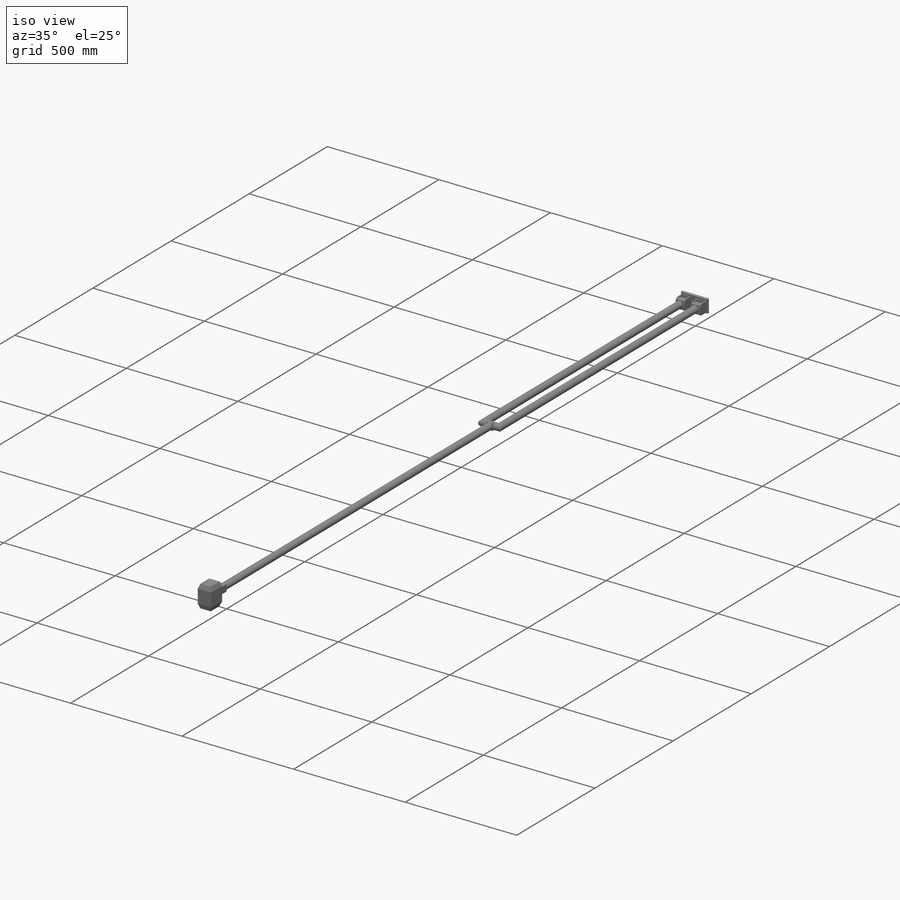
[diagram: iso view]
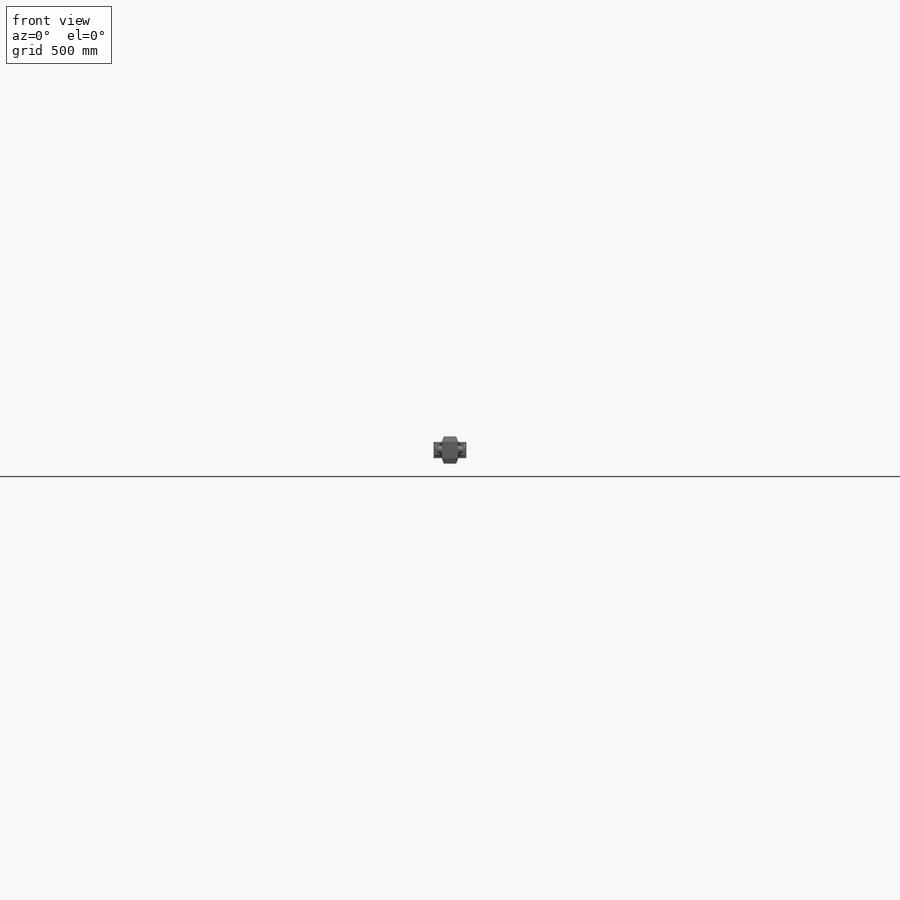
[diagram: front view]
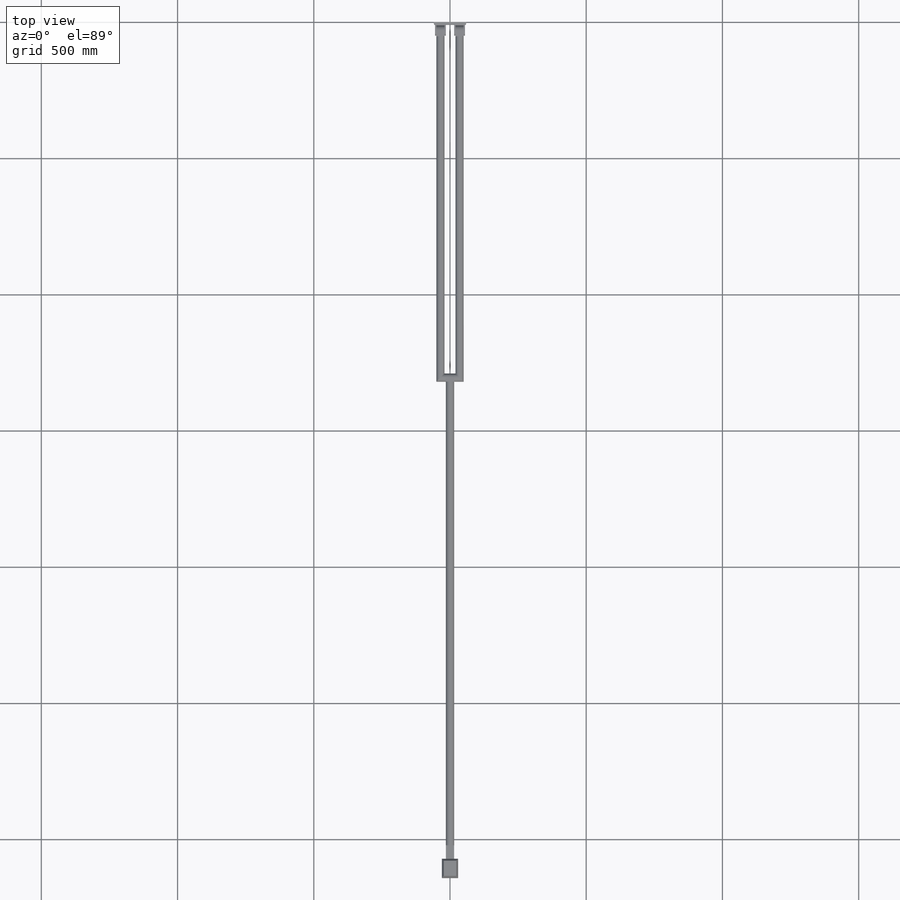
[diagram: top view]
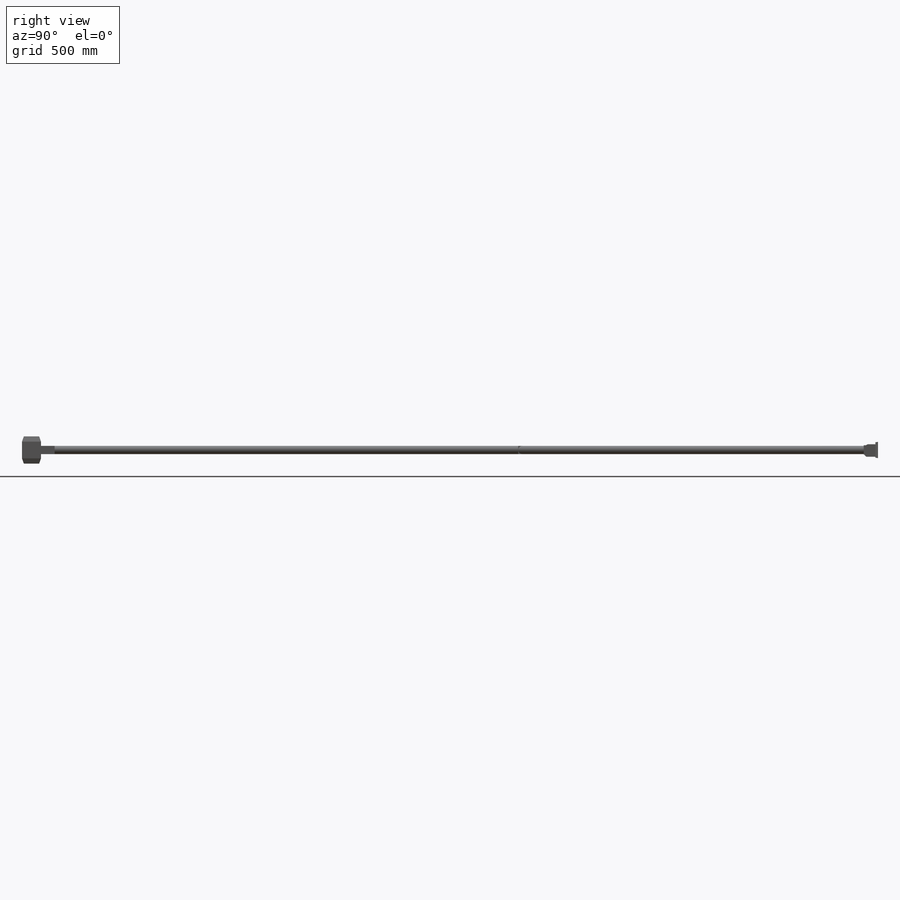
[diagram: right view]
SOLIDWORKS PART (.sldprt)
format: sldprt  version: not decoded by parser v0  size: 414,208 bytes
history: native  units: mm
features: sketch x13, extrude x9, cut_extrude x4, plane x2, chamfer x2, material x1, fillet x1, mirror x1 (+12 scaffold rows collapsed)
feature tree (45):
  scaffold x12  (default folders/planes/origin — collapsed)
  material  "Material <not specified>"
  sketch  "Sketch1"  dims[D1=120.0mm D2=60.0mm]
  extrude  "Boss-Extrude1"  Depth=10mm
  sketch  "Sketch2"  dims[D1=0.0mm]
  extrude  "Boss-Extrude2"  Depth=55mm
  sketch  "Sketch3"
  cut_extrude  "Cut-Extrude1"  Depth=15mm
  plane  "Plane1"
  sketch  "Sketch4"  dims[D1=35.0mm]
  cut_extrude  "Cut-Extrude2"  Depth=15mm
  sketch  "Sketch5"
  cut_extrude  "Cut-Extrude3"  Depth=65mm
  sketch  "Sketch6"  dims[D1=35.0mm]
  extrude  "Boss-Extrude3"  [1 undecoded]
  fillet  "Fillet1"  Radius=10mm
  sketch  "Sketch7"
  extrude  "Boss-Extrude4"  Depth=1270mm
  sketch  "Sketch8"
  cut_extrude  "Cut-Extrude4"  [1 undecoded]
  plane  "Plane2"
  sketch  "Sketch10"
  extrude  "Boss-Extrude5"  Depth=20mm
  mirror  "Mirror4"
  sketch  "Sketch11"
  extrude  "Boss-Extrude6"  [1 undecoded]
  sketch  "Sketch12"
  extrude  "Boss-Extrude8"  Depth=1701.8mm
  sketch  "Sketch13"
  extrude  "Boss-Extrude9"  Depth=50mm
  sketch  "Sketch20"  dims[D1=60.0mm D2=100.0mm]
  extrude  "Boss-Extrude15"  Depth=70mm
  chamfer  "Chamfer4"  Distance=7mm Angle=70deg
  chamfer  "Chamfer5"  Distance=7mm Angle=70deg
decode coverage: 18 of 30 modeling features carry decoded parameters
note: 3 parameter values undecoded
summary: no parameter record found for 3 features
note: suppression state not decoded; provenance and decode notes live in map.json
